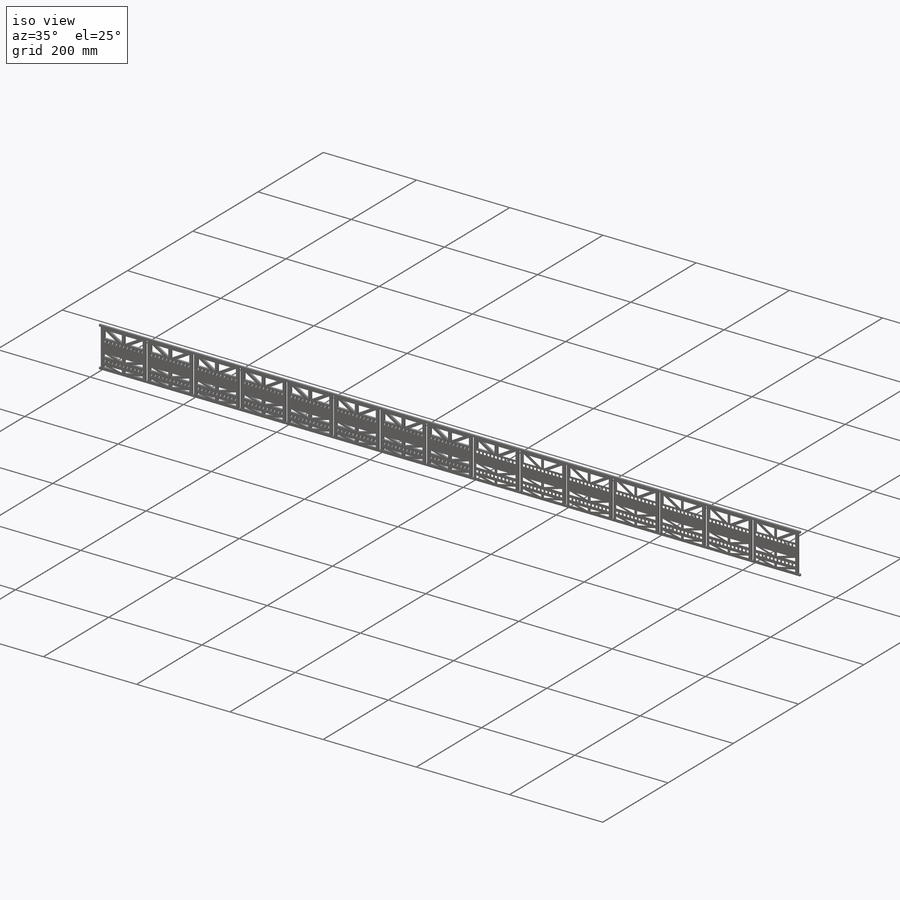
[diagram: iso view]
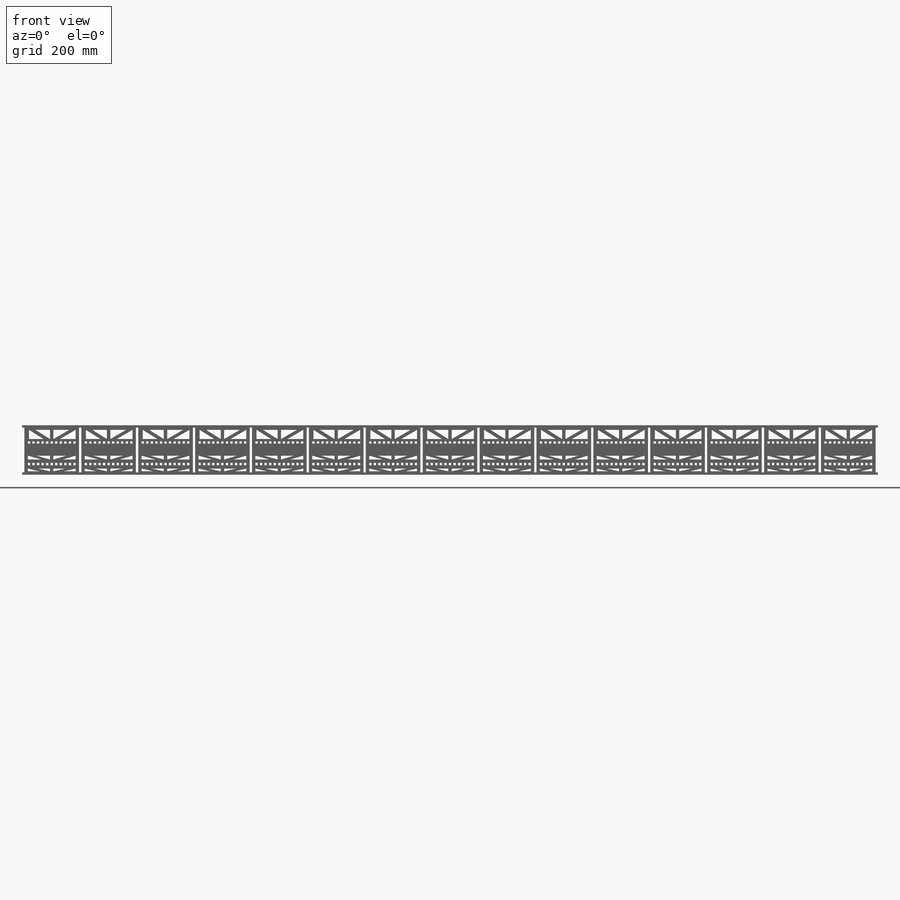
[diagram: front view]
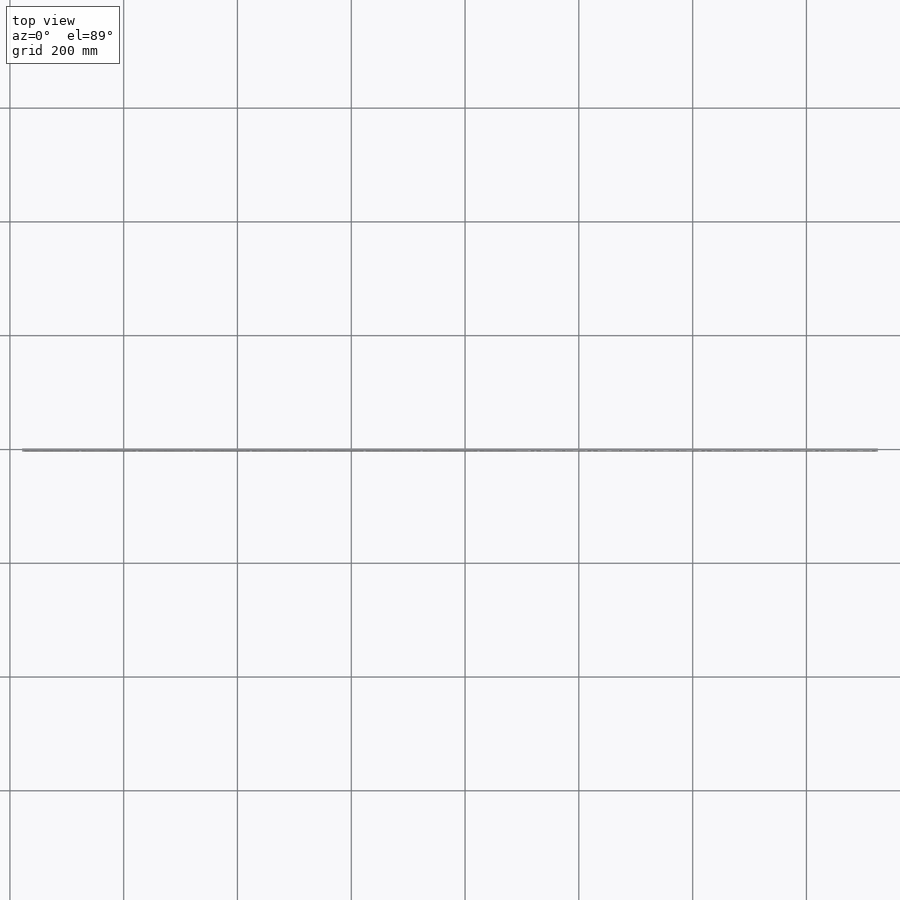
[diagram: top view]
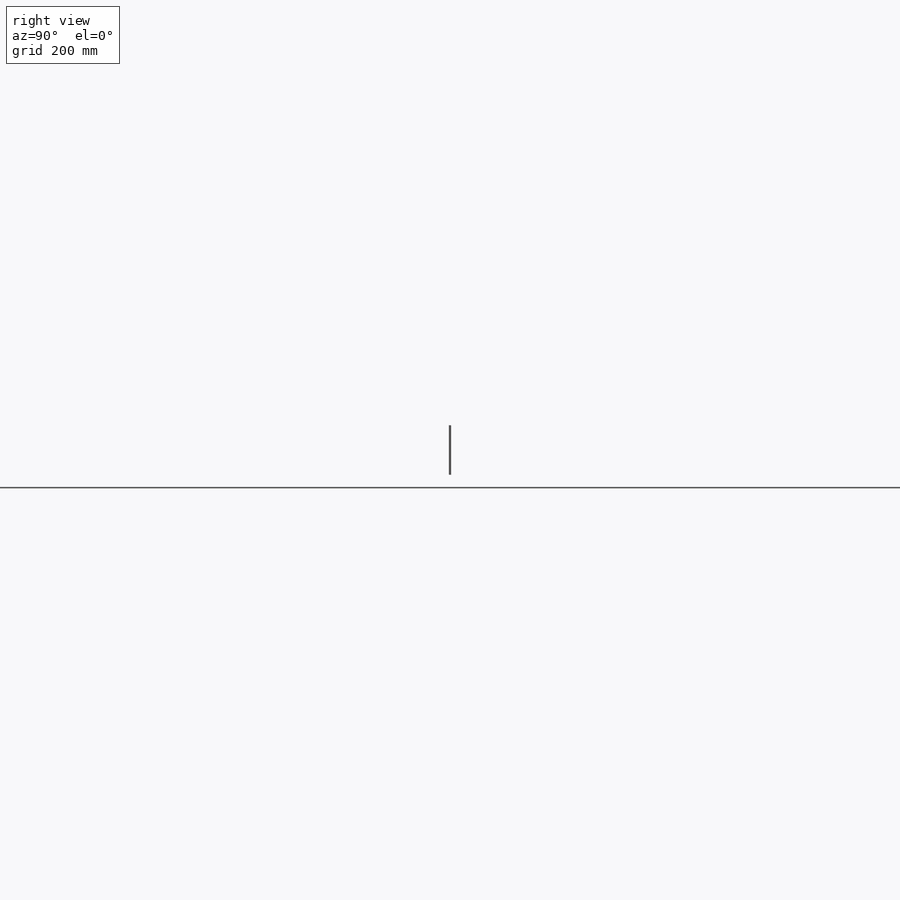
[diagram: right view]
SOLIDWORKS PART (.sldprt)
format: sldprt  version: not decoded by parser v0  size: 3,195,904 bytes
history: native  units: mm
features: sketch x5, extrude x3, cut_extrude x2, material x1 (+13 scaffold rows collapsed)
feature tree (24):
  scaffold x13  (default folders/planes/origin — collapsed)
  material  "Cedar"
  sketch  "Sketch2"  dims[c1.D1=1500.0mm c1.D2=4.0mm c1.D3=4.0mm c1.D4=86.81mm c1.D5=4.0mm c1.D6=12.0mm c1.D7=12.0mm c2.D6=18.0mm c2.D7=0.01mm c2.D8=12.0mm c2.D9=6.0mm c2.D10=6.0mm c2.D11=6.0mm c2.D12=0.01mm c2.D13=8.0mm c2.D14=6.0mm c2.D15=12.0mm c2.D16=12.0mm c3.D6=1500.0mm c3.D4=43.405mm c3.D5=24.0mm c4.D6=24.0mm c4.D7=6.0mm c4.D8=8.0mm c4.D9=24.0mm c4.D10=6.0mm c4.D11=~200.166667mm c4.D12=96.0mm c5.D11=96.0mm c5.D12=4.0mm c5.D14=6.0mm c5.D4=1504.0mm c6.D12=39.405mm c6.D13=~44.668601mm c7.D13=90.0deg c7.D12=43.405mm c7.D11=15.0]
  extrude  "Boss-Extrude1"  Depth=4mm
  sketch  "Sketch3"  dims[c1.D1=1504.0mm c1.D2=4.0mm c1.D3=39.41mm c1.D4=4.0mm c1.D6=4.0mm c2.D3=43.405mm c2.D5=15.0]
  extrude  "Boss-Extrude2"  Depth=4mm
  sketch  "Sketch5"  dims[c1.D1=8.0mm c1.D2=8.0mm c1.D3=~23.17223mm c2.D3=8.0deg c2.6=6.0mm c2.D4=6.0mm c2.D5=6.0mm c2.D6=8.0mm c2.D7=8.0mm c3.D3=28.14mm c3.D9=4.0mm c3.D10=4.0mm c3.D11=3.265mm c3.D6=4.0mm c4.D11=6.0mm c4.D12=88.0mm c4.D2=4.0mm c4.D6=66.14mm c4.D8=4.0mm c4.D13=4.0mm c4.D14=6.0mm c4.D15=6.0mm c4.D16=~2.807169mm c4.D17=3.0mm c5.D16=4.0mm c5.D18=6.0mm c5.D19=6.0mm c5.D20=6.0mm c5.D21=4.67mm c5.D22=6.0mm c5.D23=4.0mm c5.D24=20.0mm c5.D4=3.0mm c5.D17=3.0mm c6.D22=6.0mm c6.D24=82.81mm c6.D4=3.0mm c7.D24=3.0mm c7.D25=3.0mm c7.D26=6.0mm c7.D27=3.0mm c7.D28=4.0mm c7.D12=11.0]
  cut_extrude  "Cut-Extrude1"  Depth=4mm
  sketch  "Sketch6"  dims[D1=4.0mm]
  cut_extrude  "Cut-Extrude2"  Depth=10mm
  sketch  "Sketch8"  dims[D1=4.0mm D2=5.0mm D3=5.0mm D4=50.0mm D5=4.0mm]
  extrude  "Boss-Extrude3"  Depth=4mm
decode coverage: 10 of 10 modeling features carry decoded parameters
note: ~ marks probable driven/reference dimensions
note: suppression state not decoded; provenance and decode notes live in map.json
